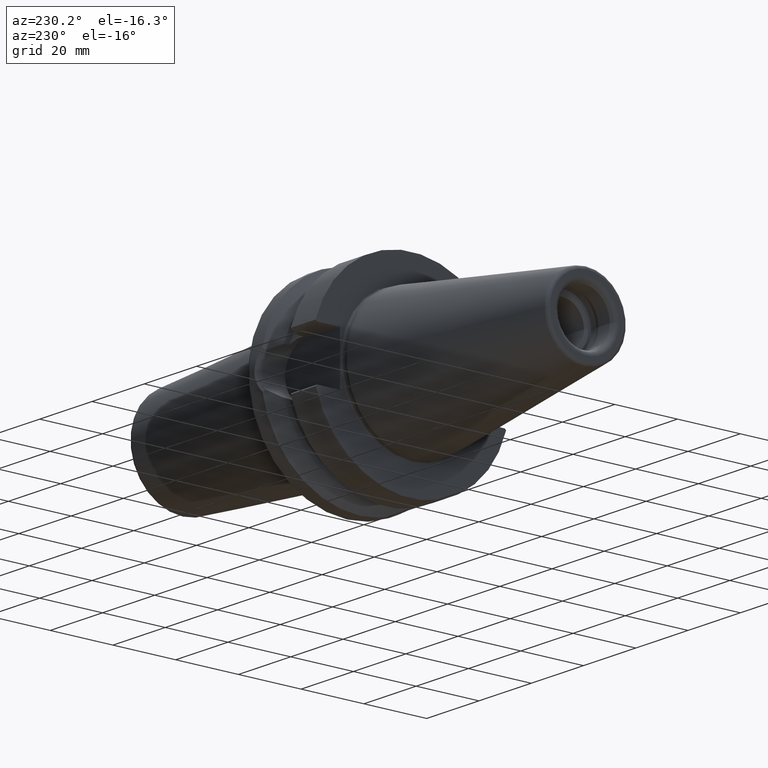
[diagram: clean part render]
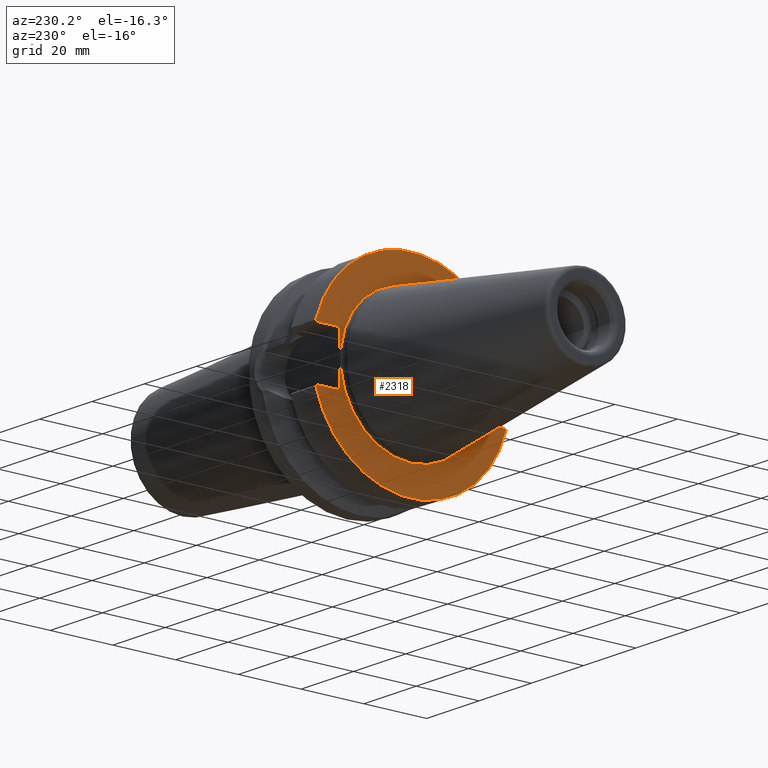
[diagram: same view with one face highlighted and labeled with its STEP entity id]
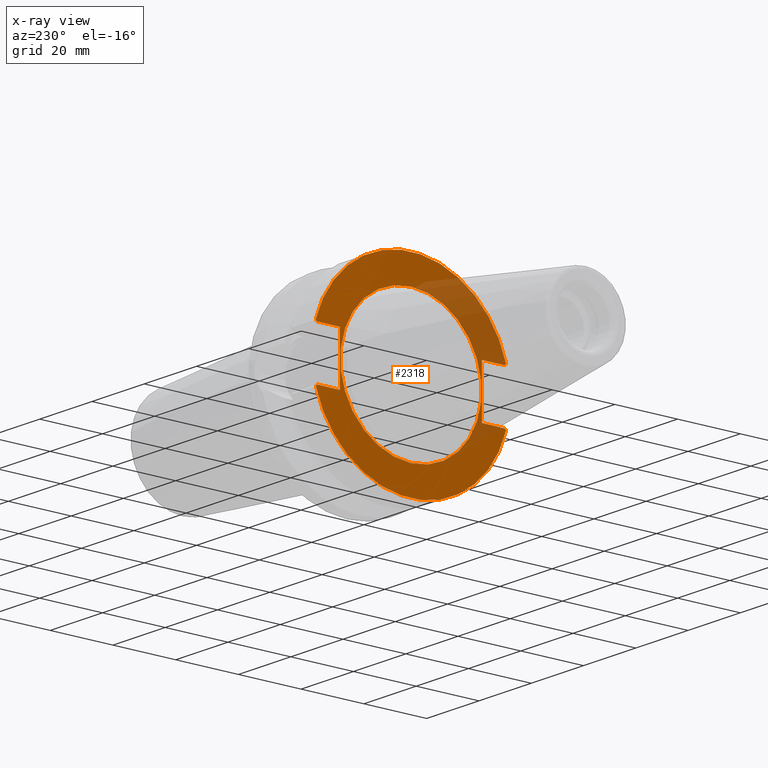
[diagram: x-ray of the same camera — body ghosted, the highlighted face saturated]
A machine part, auxiliary view. The second image highlights one B-rep face of the part: STEP entity #2318.
The next image is the same camera in x-ray: the body ghosted, the highlighted face saturated — about 21% of this face is hidden behind the body in this view.
In plain terms, the highlighted planar face has unit normal (-1, 0, 0).
Its self-contained STEP definition (entity closure, byte-faithful):
#695=CARTESIAN_POINT('',(2.E0,0.E0,0.E0));
#696=DIRECTION('',(-1.E0,0.E0,0.E0));
#697=DIRECTION('',(0.E0,9.630332709368E-1,-2.693824772860E-1));
#698=AXIS2_PLACEMENT_3D('',#695,#696,#697);
#704=CARTESIAN_POINT('',(2.E0,0.E0,0.E0));
#705=DIRECTION('',(-1.E0,0.E0,0.E0));
#706=DIRECTION('',(0.E0,-9.630332709368E-1,2.693824772860E-1));
#707=AXIS2_PLACEMENT_3D('',#704,#705,#706);
#833=CARTESIAN_POINT('',(2.E0,0.E0,0.E0));
#834=DIRECTION('',(1.E0,0.E0,0.E0));
#835=DIRECTION('',(0.E0,0.E0,1.E0));
#836=AXIS2_PLACEMENT_3D('',#833,#834,#835);
#838=CARTESIAN_POINT('',(2.E0,0.E0,0.E0));
#839=DIRECTION('',(1.E0,0.E0,0.E0));
#840=DIRECTION('',(0.E0,0.E0,-1.E0));
#841=AXIS2_PLACEMENT_3D('',#838,#839,#840);
#843=DIRECTION('',(0.E0,0.E0,-1.E0));
#844=VECTOR('',#843,1.61E1);
#845=CARTESIAN_POINT('',(2.E0,-2.26E1,8.05E0));
#846=LINE('',#845,#844);
#847=DIRECTION('',(0.E0,1.E0,0.E0));
#848=VECTOR('',#847,7.3E0);
#849=CARTESIAN_POINT('',(2.E0,-2.99E1,-8.05E0));
#850=LINE('',#849,#848);
#851=DIRECTION('',(0.E0,7.071067811865E-1,7.071067811865E-1));
#852=VECTOR('',#851,6.159579374683E-1);
#853=CARTESIAN_POINT('',(2.E0,-3.033554803451E1,-8.485548034509E0));
#854=LINE('',#853,#852);
#855=DIRECTION('',(0.E0,-7.071067811865E-1,7.071067811865E-1));
#856=VECTOR('',#855,6.159579374683E-1);
#857=CARTESIAN_POINT('',(2.E0,3.033554803451E1,-8.485548034509E0));
#858=LINE('',#857,#856);
#859=DIRECTION('',(0.E0,-1.E0,0.E0));
#860=VECTOR('',#859,7.3E0);
#861=CARTESIAN_POINT('',(2.E0,2.99E1,-8.05E0));
#862=LINE('',#861,#860);
#863=DIRECTION('',(0.E0,0.E0,-1.E0));
#864=VECTOR('',#863,1.61E1);
#865=CARTESIAN_POINT('',(2.E0,2.26E1,8.05E0));
#866=LINE('',#865,#864);
#867=DIRECTION('',(0.E0,-1.E0,0.E0));
#868=VECTOR('',#867,7.3E0);
#869=CARTESIAN_POINT('',(2.E0,2.99E1,8.05E0));
#870=LINE('',#869,#868);
#871=DIRECTION('',(0.E0,-7.071067811866E-1,-7.071067811865E-1));
#872=VECTOR('',#871,6.159579374682E-1);
#873=CARTESIAN_POINT('',(2.E0,3.033554803451E1,8.485548034509E0));
#874=LINE('',#873,#872);
#875=DIRECTION('',(0.E0,7.071067811866E-1,-7.071067811865E-1));
#876=VECTOR('',#875,6.159579374682E-1);
#877=CARTESIAN_POINT('',(2.E0,-3.033554803451E1,8.485548034509E0));
#878=LINE('',#877,#876);
#879=DIRECTION('',(0.E0,1.E0,0.E0));
#880=VECTOR('',#879,7.3E0);
#881=CARTESIAN_POINT('',(2.E0,-2.99E1,8.05E0));
#882=LINE('',#881,#880);
#998=CARTESIAN_POINT('',(2.E0,2.26E1,8.05E0));
#999=CARTESIAN_POINT('',(2.E0,2.26E1,-8.05E0));
#1000=VERTEX_POINT('',#998);
#1001=VERTEX_POINT('',#999);
#1074=CARTESIAN_POINT('',(2.E0,0.E0,2.25E1));
#1075=CARTESIAN_POINT('',(2.E0,0.E0,-2.25E1));
#1076=VERTEX_POINT('',#1074);
#1077=VERTEX_POINT('',#1075);
#1110=CARTESIAN_POINT('',(2.E0,2.99E1,8.05E0));
#1111=VERTEX_POINT('',#1110);
#1112=CARTESIAN_POINT('',(2.E0,2.99E1,-8.05E0));
#1113=VERTEX_POINT('',#1112);
#1118=CARTESIAN_POINT('',(2.E0,3.033554803451E1,8.485548034509E0));
#1119=VERTEX_POINT('',#1118);
#1120=CARTESIAN_POINT('',(2.E0,3.033554803451E1,-8.485548034509E0));
#1121=VERTEX_POINT('',#1120);
#1123=CARTESIAN_POINT('',(2.E0,-3.033554803451E1,8.485548034509E0));
#1125=VERTEX_POINT('',#1123);
#1127=CARTESIAN_POINT('',(2.E0,-3.033554803451E1,-8.485548034509E0));
#1129=VERTEX_POINT('',#1127);
#1130=CARTESIAN_POINT('',(2.E0,-2.26E1,8.05E0));
#1131=CARTESIAN_POINT('',(2.E0,-2.26E1,-8.05E0));
#1132=VERTEX_POINT('',#1130);
#1133=VERTEX_POINT('',#1131);
#1134=CARTESIAN_POINT('',(2.E0,-2.99E1,8.05E0));
#1135=VERTEX_POINT('',#1134);
#1136=CARTESIAN_POINT('',(2.E0,-2.99E1,-8.05E0));
#1137=VERTEX_POINT('',#1136);
#2287=CARTESIAN_POINT('',(2.E0,0.E0,0.E0));
#2288=DIRECTION('',(-1.E0,0.E0,0.E0));
#2289=DIRECTION('',(0.E0,0.E0,-1.E0));
#2290=AXIS2_PLACEMENT_3D('',#2287,#2288,#2289);
#2291=PLANE('',#2290);
#2292=ORIENTED_EDGE('',*,*,#2281,.T.);
#2293=ORIENTED_EDGE('',*,*,#2053,.F.);
#2294=ORIENTED_EDGE('',*,*,#2214,.F.);
#2295=ORIENTED_EDGE('',*,*,#2169,.F.);
#2297=ORIENTED_EDGE('',*,*,#2296,.T.);
#2299=ORIENTED_EDGE('',*,*,#2298,.T.);
#2301=ORIENTED_EDGE('',*,*,#2300,.F.);
#2303=ORIENTED_EDGE('',*,*,#2302,.F.);
#2305=ORIENTED_EDGE('',*,*,#2304,.F.);
#2306=ORIENTED_EDGE('',*,*,#2181,.F.);
#2308=ORIENTED_EDGE('',*,*,#2307,.T.);
#2309=ORIENTED_EDGE('',*,*,#2263,.T.);
#2310=EDGE_LOOP('',(#2292,#2293,#2294,#2295,#2297,#2299,#2301,#2303,#2305,#2306,
#2308,#2309));
#2311=FACE_OUTER_BOUND('',#2310,.F.);
#2313=ORIENTED_EDGE('',*,*,#2312,.F.);
#2315=ORIENTED_EDGE('',*,*,#2314,.F.);
#2316=EDGE_LOOP('',(#2313,#2315));
#2317=FACE_BOUND('',#2316,.F.);
#2318=ADVANCED_FACE('',(#2311,#2317),#2291,.T.);
#699=CIRCLE('',#698,3.15E1);
#708=CIRCLE('',#707,3.15E1);
#837=CIRCLE('',#836,2.25E1);
#842=CIRCLE('',#841,2.25E1);
#2053=EDGE_CURVE('',#1137,#1133,#850,.T.);
#2169=EDGE_CURVE('',#1121,#1129,#699,.T.);
#2181=EDGE_CURVE('',#1125,#1119,#708,.T.);
#2214=EDGE_CURVE('',#1129,#1137,#854,.T.);
#2263=EDGE_CURVE('',#1135,#1132,#882,.T.);
#2281=EDGE_CURVE('',#1132,#1133,#846,.T.);
#2296=EDGE_CURVE('',#1121,#1113,#858,.T.);
#2298=EDGE_CURVE('',#1113,#1001,#862,.T.);
#2300=EDGE_CURVE('',#1000,#1001,#866,.T.);
#2302=EDGE_CURVE('',#1111,#1000,#870,.T.);
#2304=EDGE_CURVE('',#1119,#1111,#874,.T.);
#2307=EDGE_CURVE('',#1125,#1135,#878,.T.);
#2312=EDGE_CURVE('',#1076,#1077,#837,.T.);
#2314=EDGE_CURVE('',#1077,#1076,#842,.T.);